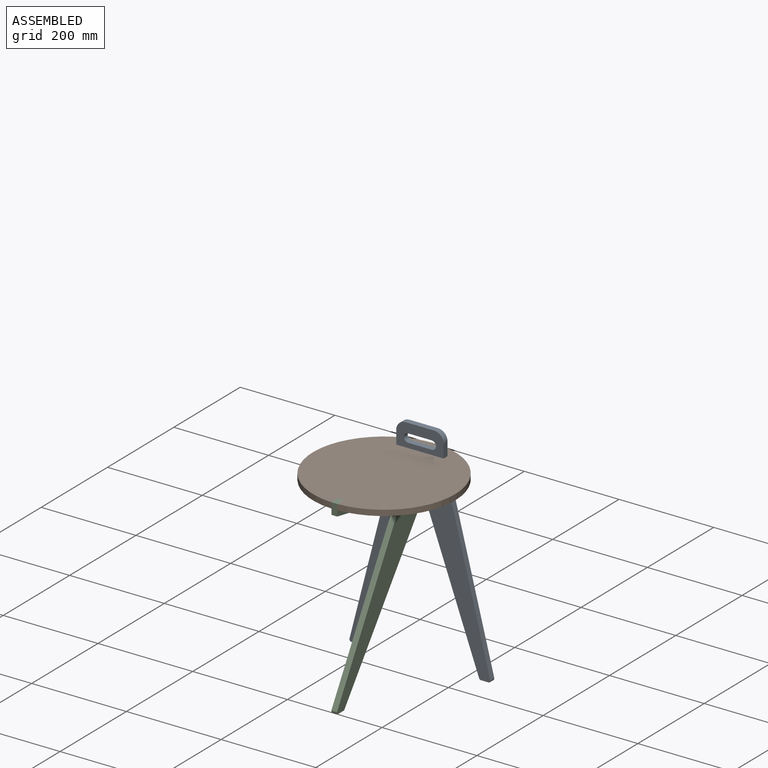
[diagram: assembled view]
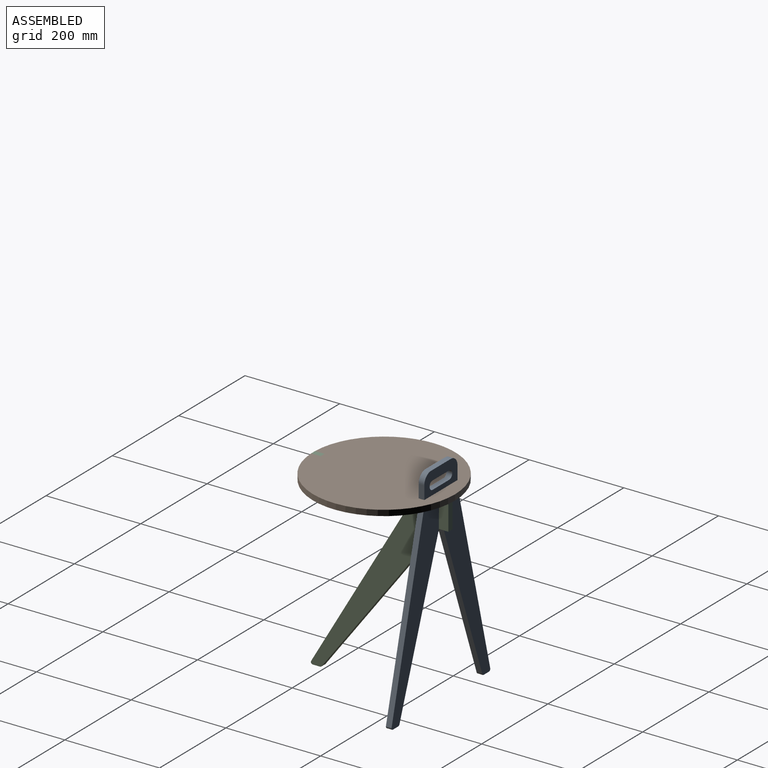
[diagram: assembled view, second angle]
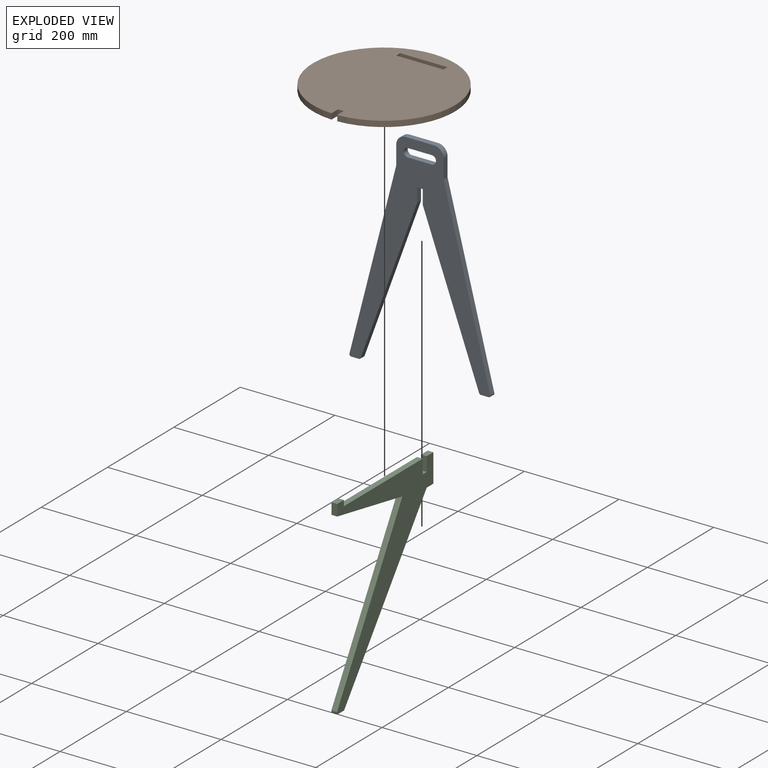
[diagram: exploded view]
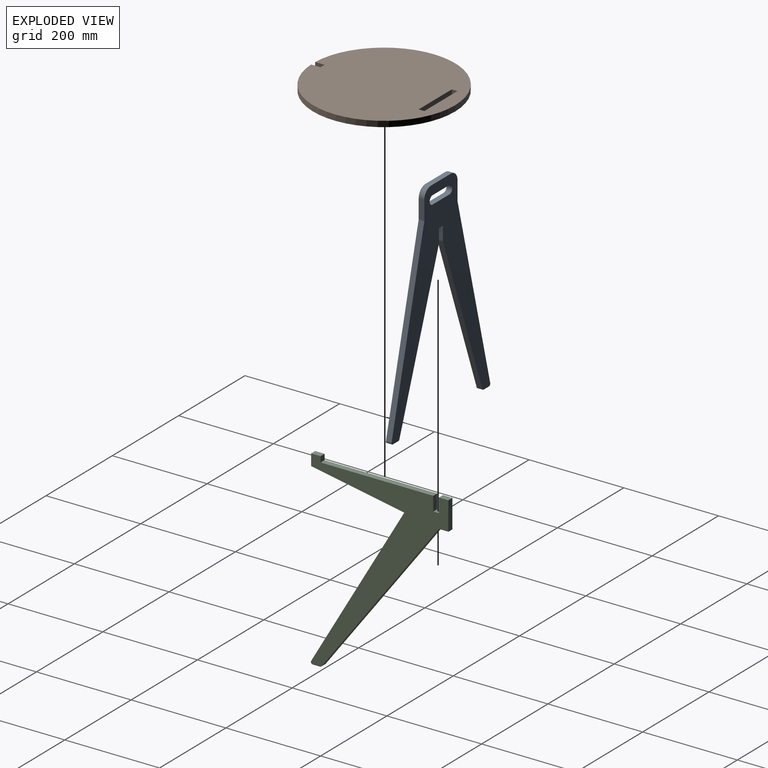
[diagram: exploded view, second angle]
ASSEMBLY  parts=3 mates=2
PART A: 24 faces, bbox 297.7x450x12 mm
  f0: cylinder r=9mm len=18mm, axis (0,0,-1), area 339.3mm2, adj f1,f21,f22,f23
  f1: plane 50x12mm, normal (0,-1,0), area 600mm2, adj f0,f2,f22,f23
  f2: cylinder r=9mm len=18mm, axis (0,0,-1), area 339.3mm2, adj f1,f21,f22,f23
  f3: plane 30x12mm, normal (1,0,0), area 360mm2, adj f4,f20,f22,f23
  f4: plane 12x12mm, normal (0,-1,0), area 144mm2, adj f3,f5,f22,f23
  f5: plane 30x12mm, normal (-1,0,0), area 360mm2, adj f4,f6,f22,f23
  f6: plane 327.37x119.04mm, normal (-0.94,-0.34,0), area 4180.1mm2, adj f5,f7,f22,f23
  f7: cylinder r=4mm len=12mm, axis (0,0,-1), area 58.7mm2, adj f6,f8,f22,f23
  f8: plane 16.04x12mm, normal (0,-1,0), area 192.5mm2, adj f7,f9,f22,f23
  f9: cylinder r=4mm len=12mm, axis (0,0,-1), area 87.4mm2, adj f8,f10,f22,f23
  f10: plane 385.01x98.72mm, normal (0.97,0.25,0), area 4769.5mm2, adj f9,f11,f22,f23
  f11: plane 40x12mm, normal (1,0,0), area 480mm2, adj f10,f12,f22,f23
  f12: cylinder r=20mm len=20mm, axis (0,0,-1), area 377mm2, adj f11,f13,f22,f23
  f13: plane 60x12mm, normal (0,1,0), area 720mm2, adj f12,f14,f22,f23
  f14: cylinder r=20mm len=20mm, axis (0,0,-1), area 377mm2, adj f13,f15,f22,f23
  f15: plane 40x12mm, normal (-1,0,0), area 480mm2, adj f14,f16,f22,f23
  f16: plane 385.01x98.72mm, normal (-0.97,0.25,0), area 4769.5mm2, adj f15,f17,f22,f23
  f17: cylinder r=4mm len=12mm, axis (0,0,-1), area 87.4mm2, adj f16,f18,f22,f23
  f18: plane 16.04x12mm, normal (0,-1,0), area 192.5mm2, adj f17,f19,f22,f23
  f19: cylinder r=4mm len=12mm, axis (0,0,-1), area 58.7mm2, adj f18,f20,f22,f23
  f20: plane 327.37x119.04mm, normal (0.94,-0.34,0), area 4180.1mm2, adj f3,f19,f22,f23
  f21: plane 50x12mm, normal (0,1,0), area 600mm2, adj f0,f2,f22,f23
  f22: plane 450x297.69mm, normal (0,0,1), area 38738.9mm2, adj f0,f1,f2,f3,f4,f5,f6,f7
  f23: plane 450x297.69mm, normal (0,0,-1), area 38738.9mm2, adj f0,f1,f2,f3,f4,f5,f6,f7
PART B: 10 faces, bbox 300x299.9x12 mm
  f0: plane 20x12mm, normal (1,0,0), area 240mm2, adj f1,f7,f8,f9
  f1: plane 12x12mm, normal (0,-1,0), area 144mm2, adj f0,f2,f8,f9
  f2: plane 20x12mm, normal (-1,0,0), area 240mm2, adj f1,f7,f8,f9
  f3: plane 12x12mm, normal (1,0,0), area 144mm2, adj f4,f6,f8,f9
  f4: plane 100x12mm, normal (0,-1,0), area 1200mm2, adj f3,f5,f8,f9
  f5: plane 12x12mm, normal (-1,0,0), area 144mm2, adj f4,f6,f8,f9
  f6: plane 100x12mm, normal (0,1,0), area 1200mm2, adj f3,f5,f8,f9
  f7: cylinder r=150mm len=300mm, axis (0,0,-1), area 11165.7mm2, adj f0,f2,f8,f9
  f8: plane 300x299.88mm, normal (0,0,1), area 69244.9mm2, adj f0,f1,f2,f3,f4,f5,f6,f7
  f9: plane 300x299.88mm, normal (0,0,-1), area 69244.9mm2, adj f0,f1,f2,f3,f4,f5,f6,f7
PART C: 18 faces, bbox 12x290.4x402 mm
  f0: plane 30x12mm, normal (0,-1,0), area 360mm2, adj f1,f15,f16,f17
  f1: plane 20x12mm, normal (0,0,1), area 240mm2, adj f0,f2,f16,f17
  f2: plane 60x12mm, normal (0,1,0), area 720mm2, adj f1,f3,f16,f17
  f3: plane 20x12mm, normal (0,0,-1), area 240mm2, adj f2,f4,f16,f17
  f4: plane 328.41x247.82mm, normal (0,0.8,-0.6), area 4937.1mm2, adj f3,f5,f16,f17
  f5: cylinder r=4mm len=12mm, axis (1,0,0), area 44.4mm2, adj f4,f6,f16,f17
  f6: plane 15.41x12mm, normal (0,0,-1), area 184.9mm2, adj f5,f7,f16,f17
  f7: cylinder r=4mm len=12mm, axis (1,0,0), area 100.9mm2, adj f6,f8,f16,f17
  f8: plane 335.38x196.62mm, normal (0,-0.86,0.51), area 4665.2mm2, adj f7,f9,f16,f17
  f9: plane 196.62x36.6mm, normal (0,-0.18,-0.98), area 2400mm2, adj f8,f10,f16,f17
  f10: plane 24x12mm, normal (0,-1,0), area 288mm2, adj f9,f11,f16,f17
  f11: plane 20x12mm, normal (0,0,1), area 240mm2, adj f10,f12,f16,f17
  f12: plane 12x12mm, normal (0,1,0), area 144mm2, adj f11,f13,f16,f17
  f13: plane 237.88x12mm, normal (0,0,1), area 2854.6mm2, adj f12,f14,f16,f17
  f14: plane 30x12mm, normal (0,1,0), area 360mm2, adj f13,f15,f16,f17
  f15: plane 12x12mm, normal (0,0,1), area 144mm2, adj f0,f14,f16,f17
  f16: plane 402x290.43mm, normal (-1,0,0), area 28673.4mm2, adj f0,f1,f2,f3,f4,f5,f6,f7
  f17: plane 402x290.43mm, normal (1,0,0), area 28673.4mm2, adj f0,f1,f2,f3,f4,f5,f6,f7
PLACE A rot(axis=(1,0,0),90deg) t=(-88.43,52.24,-195.97)mm
PLACE B t=(-88.43,-67.76,-30.97)mm fixed
PLACE C at identity
MATE fastened A.f4 <-> C.f15  axis (0,0,-1) through (-88.43,46.24,-60.97)mm
MATE fastened C.f11 <-> B.f8  axis (0,0,1) through (-88.43,-197.64,-18.97)mm
